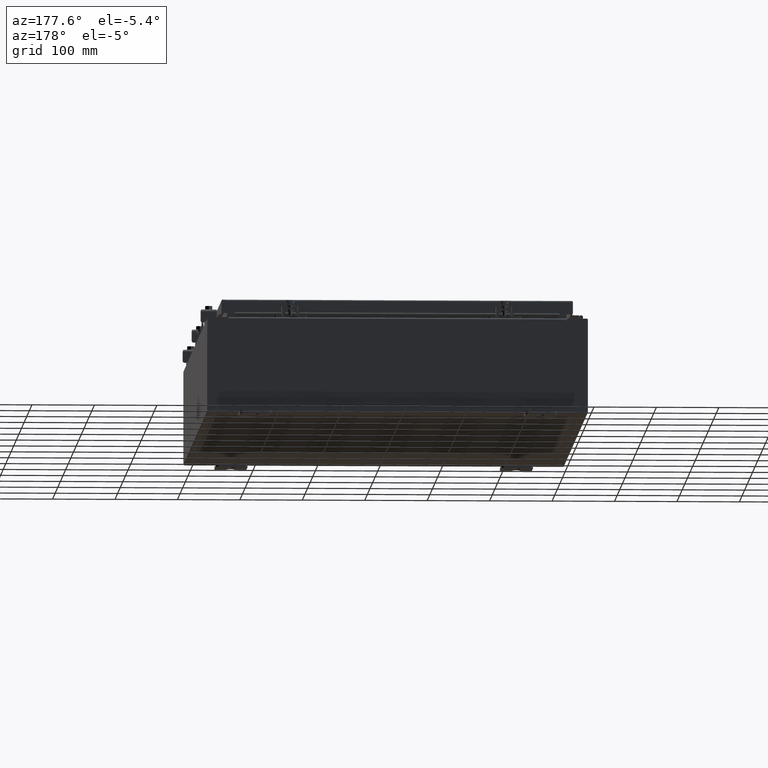
[diagram: clean part render]
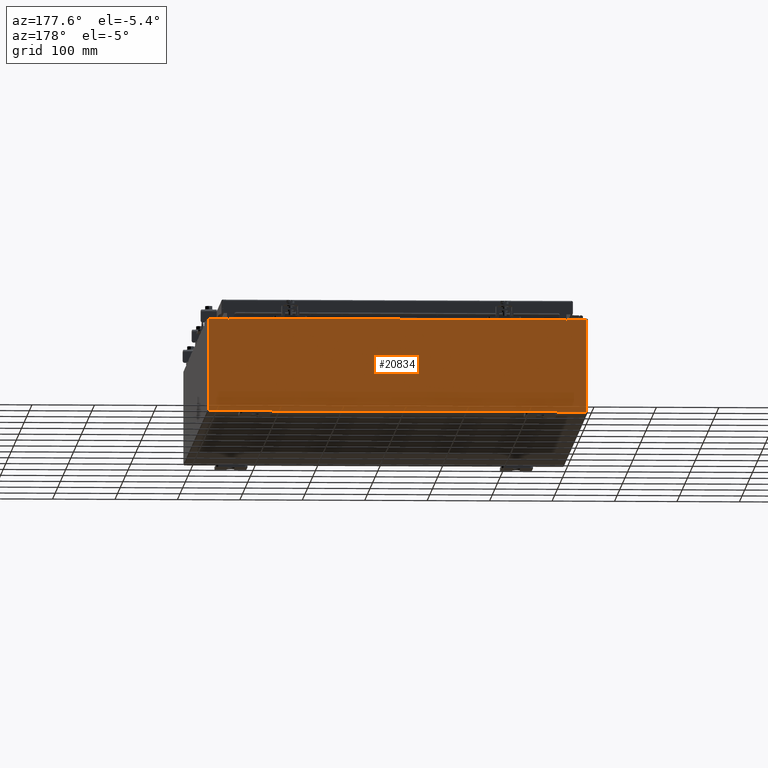
[diagram: same view with one face highlighted and labeled with its STEP entity id]
A machine part, auxiliary view. The second image highlights one B-rep face of the part: STEP entity #20834.
In plain terms, the highlighted planar face has unit normal (0, -1, 0).
Its self-contained STEP definition (entity closure, byte-faithful):
#32 = VECTOR ( 'NONE', #32937, 39.37007874015748100 ) ;
#464 = LINE ( 'NONE', #40654, #24329 ) ;
#638 = VERTEX_POINT ( 'NONE', #36134 ) ;
#4852 = DIRECTION ( 'NONE',  ( 0.0000000000000000000, 0.0000000000000000000, -1.000000000000000000 ) ) ;
#5592 = VERTEX_POINT ( 'NONE', #19120 ) ;
#5724 = VERTEX_POINT ( 'NONE', #13748 ) ;
#5947 = DIRECTION ( 'NONE',  ( -4.340572780400004900E-014, 0.0000000000000000000, -1.000000000000000000 ) ) ;
#6053 = VECTOR ( 'NONE', #5947, 39.37007874015748100 ) ;
#6339 = EDGE_CURVE ( 'NONE', #12898, #27276, #19870, .T. ) ;
#6366 = CARTESIAN_POINT ( 'NONE',  ( 11.92530000000000000, 0.0000000000000000000, -2.925299999999999600 ) ) ;
#6872 = CARTESIAN_POINT ( 'NONE',  ( -11.92530000000000000, 0.0000000000000000000, 2.925300000000000500 ) ) ;
#6899 = CARTESIAN_POINT ( 'NONE',  ( -10.63720000000000400, 1.024442997624098700E-016, 2.912300000000000600 ) ) ;
#7410 = EDGE_CURVE ( 'NONE', #28611, #41439, #464, .T. ) ;
#8161 = EDGE_CURVE ( 'NONE', #12070, #5724, #14732, .T. ) ;
#8517 = ORIENTED_EDGE ( 'NONE', *, *, #7410, .T. ) ;
#8669 = LINE ( 'NONE', #6899, #32 ) ;
#8859 = EDGE_CURVE ( 'NONE', #41439, #11796, #22758, .T. ) ;
#9395 = DIRECTION ( 'NONE',  ( 0.0000000000000000000, 0.0000000000000000000, 1.000000000000000000 ) ) ;
#9441 = ORIENTED_EDGE ( 'NONE', *, *, #18316, .F. ) ;
#9774 = CARTESIAN_POINT ( 'NONE',  ( -10.67455000000000200, 0.0000000000000000000, 2.925300000000000500 ) ) ;
#10356 = VECTOR ( 'NONE', #9395, 39.37007874015748100 ) ;
#10692 = ORIENTED_EDGE ( 'NONE', *, *, #21752, .T. ) ;
#10819 = EDGE_LOOP ( 'NONE', ( #9441, #40739, #18000, #35744, #27989, #41137, #19264, #10692, #8517, #12810, #14777, #35460 ) ) ;
#10857 = EDGE_CURVE ( 'NONE', #11796, #12898, #25555, .T. ) ;
#11796 = VERTEX_POINT ( 'NONE', #31106 ) ;
#11871 = EDGE_CURVE ( 'NONE', #5592, #32144, #38750, .T. ) ;
#11943 = CARTESIAN_POINT ( 'NONE',  ( 10.63720000000000400, 0.0000000000000000000, 0.0000000000000000000 ) ) ;
#12070 = VERTEX_POINT ( 'NONE', #30194 ) ;
#12278 = VECTOR ( 'NONE', #39357, 39.37007874015748100 ) ;
#12490 = CARTESIAN_POINT ( 'NONE',  ( -11.92530000000000000, 0.0000000000000000000, 2.925300000000000500 ) ) ;
#12541 = CIRCLE ( 'NONE', #35050, 0.01867499999999949400 ) ;
#12793 = VECTOR ( 'NONE', #28380, 39.37007874015748100 ) ;
#12810 = ORIENTED_EDGE ( 'NONE', *, *, #8859, .T. ) ;
#12898 = VERTEX_POINT ( 'NONE', #17568 ) ;
#13748 = CARTESIAN_POINT ( 'NONE',  ( 10.67455000000000200, 0.0000000000000000000, 2.874950000000000600 ) ) ;
#13821 = AXIS2_PLACEMENT_3D ( 'NONE', #15768, #38637, #19149 ) ;
#13913 = EDGE_CURVE ( 'NONE', #638, #38454, #16374, .T. ) ;
#14491 = DIRECTION ( 'NONE',  ( -0.0000000000000000000, 1.000000000000000000, -0.0000000000000000000 ) ) ;
#14671 = CIRCLE ( 'NONE', #39333, 0.01867499999999949400 ) ;
#14701 = VERTEX_POINT ( 'NONE', #21042 ) ;
#14732 = LINE ( 'NONE', #31925, #6053 ) ;
#14777 = ORIENTED_EDGE ( 'NONE', *, *, #10857, .T. ) ;
#15514 = EDGE_CURVE ( 'NONE', #5724, #5592, #14671, .T. ) ;
#15726 = CARTESIAN_POINT ( 'NONE',  ( 10.65587500000000200, 0.0000000000000000000, 2.874950000000000600 ) ) ;
#15768 = CARTESIAN_POINT ( 'NONE',  ( 0.0000000000000000000, 0.0000000000000000000, 0.0000000000000000000 ) ) ;
#16039 = VECTOR ( 'NONE', #28791, 39.37007874015748100 ) ;
#16374 = LINE ( 'NONE', #35673, #31577 ) ;
#17055 = LINE ( 'NONE', #12490, #16039 ) ;
#17568 = CARTESIAN_POINT ( 'NONE',  ( -11.92530000000000000, 0.0000000000000000000, 2.925300000000000500 ) ) ;
#18000 = ORIENTED_EDGE ( 'NONE', *, *, #13913, .F. ) ;
#18316 = EDGE_CURVE ( 'NONE', #14701, #27276, #26612, .T. ) ;
#18975 = DIRECTION ( 'NONE',  ( 0.0000000000000000000, 0.0000000000000000000, -1.000000000000000000 ) ) ;
#19120 = CARTESIAN_POINT ( 'NONE',  ( 10.63720000000000400, 0.0000000000000000000, 2.874950000000000600 ) ) ;
#19149 = DIRECTION ( 'NONE',  ( 0.0000000000000000000, -0.0000000000000000000, -1.000000000000000000 ) ) ;
#19264 = ORIENTED_EDGE ( 'NONE', *, *, #8161, .F. ) ;
#19870 = LINE ( 'NONE', #32251, #12278 ) ;
#20570 = EDGE_CURVE ( 'NONE', #38454, #14701, #12541, .T. ) ;
#20834 = ADVANCED_FACE ( 'NONE', ( #30260 ), #35350, .F. ) ;
#21042 = CARTESIAN_POINT ( 'NONE',  ( -10.67455000000000200, 0.0000000000000000000, 2.874950000000000600 ) ) ;
#21752 = EDGE_CURVE ( 'NONE', #12070, #28611, #17055, .T. ) ;
#22758 = LINE ( 'NONE', #40285, #32465 ) ;
#23501 = VECTOR ( 'NONE', #39450, 39.37007874015748100 ) ;
#23851 = CARTESIAN_POINT ( 'NONE',  ( 10.63720000000000400, 0.0000000000000000000, 2.912300000000000600 ) ) ;
#23916 = DIRECTION ( 'NONE',  ( -1.000000000000000000, -0.0000000000000000000, -0.0000000000000000000 ) ) ;
#24329 = VECTOR ( 'NONE', #4852, 39.37007874015748100 ) ;
#25399 = DIRECTION ( 'NONE',  ( 0.0000000000000000000, 0.0000000000000000000, -1.000000000000000000 ) ) ;
#25555 = LINE ( 'NONE', #6872, #23501 ) ;
#25701 = CARTESIAN_POINT ( 'NONE',  ( -10.67455000000000200, -0.0000000000000000000, 0.0000000000000000000 ) ) ;
#26612 = LINE ( 'NONE', #25701, #10356 ) ;
#27276 = VERTEX_POINT ( 'NONE', #9774 ) ;
#27989 = ORIENTED_EDGE ( 'NONE', *, *, #11871, .F. ) ;
#28380 = DIRECTION ( 'NONE',  ( 0.0000000000000000000, 0.0000000000000000000, 1.000000000000000000 ) ) ;
#28611 = VERTEX_POINT ( 'NONE', #39678 ) ;
#28791 = DIRECTION ( 'NONE',  ( 1.000000000000000000, 0.0000000000000000000, 0.0000000000000000000 ) ) ;
#30194 = CARTESIAN_POINT ( 'NONE',  ( 10.67455000000000200, 0.0000000000000000000, 2.925300000000000500 ) ) ;
#30260 = FACE_OUTER_BOUND ( 'NONE', #10819, .T. ) ;
#31106 = CARTESIAN_POINT ( 'NONE',  ( -11.92530000000000000, 0.0000000000000000000, -2.925299999999999600 ) ) ;
#31577 = VECTOR ( 'NONE', #25399, 39.37007874015748100 ) ;
#31925 = CARTESIAN_POINT ( 'NONE',  ( 10.67454999999987700, -0.0000000000000000000, -4.633366117301834200E-013 ) ) ;
#32144 = VERTEX_POINT ( 'NONE', #23851 ) ;
#32251 = CARTESIAN_POINT ( 'NONE',  ( -11.92530000000000000, 0.0000000000000000000, 2.925300000000000500 ) ) ;
#32465 = VECTOR ( 'NONE', #23916, 39.37007874015748100 ) ;
#32937 = DIRECTION ( 'NONE',  ( 1.000000000000000000, 0.0000000000000000000, 0.0000000000000000000 ) ) ;
#33932 = CARTESIAN_POINT ( 'NONE',  ( -10.65587500000000200, 0.0000000000000000000, 2.874950000000000600 ) ) ;
#35050 = AXIS2_PLACEMENT_3D ( 'NONE', #33932, #14491, #37215 ) ;
#35350 = PLANE ( 'NONE',  #13821 ) ;
#35460 = ORIENTED_EDGE ( 'NONE', *, *, #6339, .T. ) ;
#35673 = CARTESIAN_POINT ( 'NONE',  ( -10.63720000000000400, -0.0000000000000000000, 0.0000000000000000000 ) ) ;
#35744 = ORIENTED_EDGE ( 'NONE', *, *, #40121, .T. ) ;
#36134 = CARTESIAN_POINT ( 'NONE',  ( -10.63720000000000400, 1.024442997624098700E-016, 2.912300000000000600 ) ) ;
#37215 = DIRECTION ( 'NONE',  ( 0.0000000000000000000, 0.0000000000000000000, -1.000000000000000000 ) ) ;
#38445 = DIRECTION ( 'NONE',  ( -0.0000000000000000000, 1.000000000000000000, -0.0000000000000000000 ) ) ;
#38454 = VERTEX_POINT ( 'NONE', #41943 ) ;
#38637 = DIRECTION ( 'NONE',  ( 0.0000000000000000000, -1.000000000000000000, 0.0000000000000000000 ) ) ;
#38750 = LINE ( 'NONE', #11943, #12793 ) ;
#39333 = AXIS2_PLACEMENT_3D ( 'NONE', #15726, #38445, #18975 ) ;
#39357 = DIRECTION ( 'NONE',  ( 1.000000000000000000, 0.0000000000000000000, 0.0000000000000000000 ) ) ;
#39450 = DIRECTION ( 'NONE',  ( -0.0000000000000000000, -0.0000000000000000000, 1.000000000000000000 ) ) ;
#39678 = CARTESIAN_POINT ( 'NONE',  ( 11.92530000000000000, 0.0000000000000000000, 2.925300000000000500 ) ) ;
#40121 = EDGE_CURVE ( 'NONE', #638, #32144, #8669, .T. ) ;
#40285 = CARTESIAN_POINT ( 'NONE',  ( -11.92530000000000000, 0.0000000000000000000, -2.925299999999999600 ) ) ;
#40654 = CARTESIAN_POINT ( 'NONE',  ( 11.92530000000000000, 0.0000000000000000000, 2.925300000000000500 ) ) ;
#40739 = ORIENTED_EDGE ( 'NONE', *, *, #20570, .F. ) ;
#41137 = ORIENTED_EDGE ( 'NONE', *, *, #15514, .F. ) ;
#41439 = VERTEX_POINT ( 'NONE', #6366 ) ;
#41943 = CARTESIAN_POINT ( 'NONE',  ( -10.63720000000000400, -0.0000000000000000000, 2.874950000000000600 ) ) ;